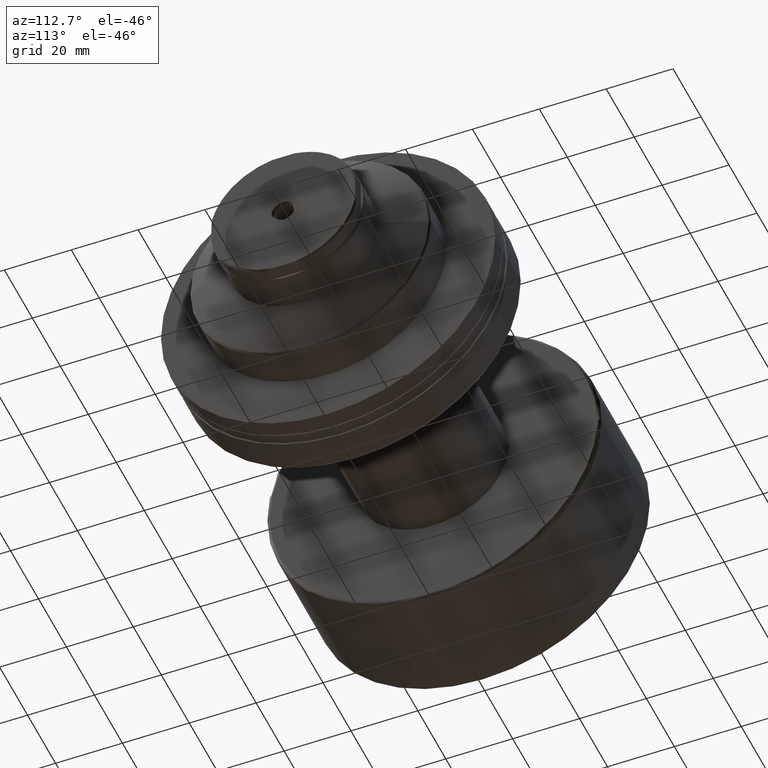
[diagram: clean part render]
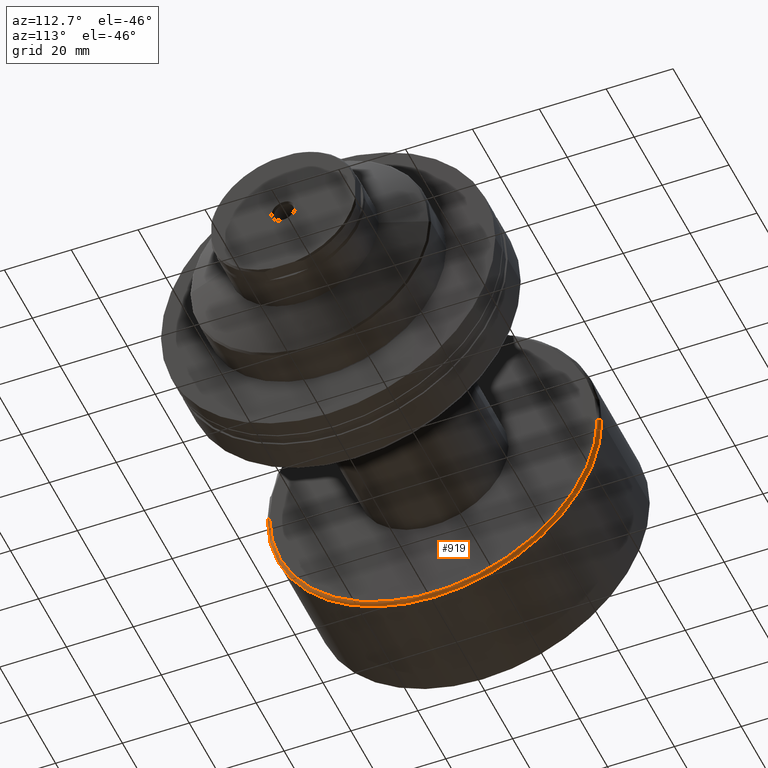
[diagram: same view with one face highlighted and labeled with its STEP entity id]
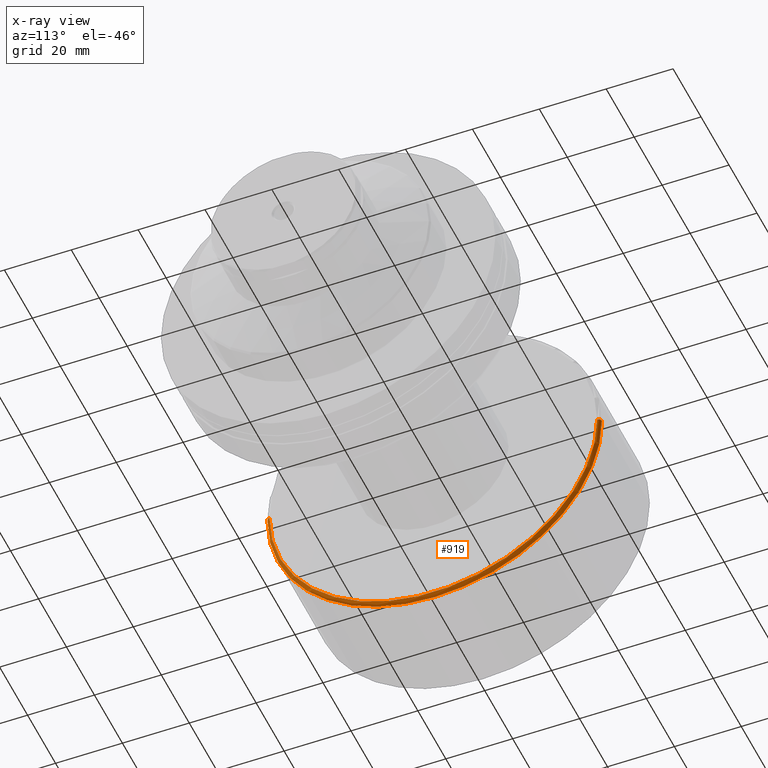
[diagram: x-ray of the same camera — body ghosted, the highlighted face saturated]
A machine part, auxiliary view. The second image highlights one B-rep face of the part: STEP entity #919.
The next image is the same camera in x-ray: the body ghosted, the highlighted face saturated — about 0% of this face is hidden behind the body in this view.
In plain terms, the highlighted toroidal blend (fillet) surface has major radius 49 mm and minor (blend) radius 1 mm.
Its self-contained STEP definition (entity closure, byte-faithful):
#28 = EDGE_LOOP ( 'NONE', ( #754, #538, #1462, #582 ) ) ;
#186 = EDGE_CURVE ( 'NONE', #276, #1580, #384, .T. ) ;
#190 = CARTESIAN_POINT ( 'NONE',  ( 35.70000000000000284, -49.00000000000000000, 0.000000000000000000 ) ) ;
#230 = DIRECTION ( 'NONE',  ( 1.069542322069065955E-17, -1.000000000000000000, 0.000000000000000000 ) ) ;
#249 = CIRCLE ( 'NONE', #1436, 49.00000000000000000 ) ;
#276 = VERTEX_POINT ( 'NONE', #749 ) ;
#381 = FACE_OUTER_BOUND ( 'NONE', #28, .T. ) ;
#384 = CIRCLE ( 'NONE', #1694, 1.000000000000000888 ) ;
#386 = AXIS2_PLACEMENT_3D ( 'NONE', #1819, #1084, #230 ) ;
#420 = AXIS2_PLACEMENT_3D ( 'NONE', #1584, #2090, #2119 ) ;
#538 = ORIENTED_EDGE ( 'NONE', *, *, #2303, .T. ) ;
#550 = DIRECTION ( 'NONE',  ( -1.000000000000000000, 0.000000000000000000, 0.000000000000000000 ) ) ;
#582 = ORIENTED_EDGE ( 'NONE', *, *, #2210, .F. ) ;
#619 = CIRCLE ( 'NONE', #1394, 50.00000000000000000 ) ;
#698 = DIRECTION ( 'NONE',  ( 0.000000000000000000, -1.000000000000000000, 0.000000000000000000 ) ) ;
#731 = DIRECTION ( 'NONE',  ( -1.000000000000000000, -1.069542322069065801E-17, -0.000000000000000000 ) ) ;
#749 = CARTESIAN_POINT ( 'NONE',  ( 36.70000000000000284, -49.00000000000000000, 0.000000000000000000 ) ) ;
#754 = ORIENTED_EDGE ( 'NONE', *, *, #824, .F. ) ;
#824 = EDGE_CURVE ( 'NONE', #1864, #2057, #2218, .T. ) ;
#835 = CARTESIAN_POINT ( 'NONE',  ( 35.70000000000000284, -50.00000000000000000, 0.000000000000000000 ) ) ;
#896 = DIRECTION ( 'NONE',  ( 0.000000000000000000, 0.000000000000000000, -1.000000000000000000 ) ) ;
#919 = ADVANCED_FACE ( 'NONE', ( #381 ), #1392, .T. ) ;
#944 = CARTESIAN_POINT ( 'NONE',  ( 36.70000000000000284, 3.925220321993471577E-16, 0.000000000000000000 ) ) ;
#999 = CARTESIAN_POINT ( 'NONE',  ( 35.70000000000000284, 50.00000000000000000, 6.123233995736766085E-15 ) ) ;
#1084 = DIRECTION ( 'NONE',  ( -1.000000000000000000, -1.069542322069065801E-17, -0.000000000000000000 ) ) ;
#1258 = CARTESIAN_POINT ( 'NONE',  ( 35.70000000000000284, 3.818266089786565135E-16, 0.000000000000000000 ) ) ;
#1392 = TOROIDAL_SURFACE ( 'NONE', #386, 49.00000000000000000, 1.000000000000000888 ) ;
#1394 = AXIS2_PLACEMENT_3D ( 'NONE', #1258, #731, #698 ) ;
#1436 = AXIS2_PLACEMENT_3D ( 'NONE', #944, #1656, #1670 ) ;
#1462 = ORIENTED_EDGE ( 'NONE', *, *, #186, .T. ) ;
#1580 = VERTEX_POINT ( 'NONE', #835 ) ;
#1584 = CARTESIAN_POINT ( 'NONE',  ( 35.70000000000000284, 49.00000000000000000, 6.000769315822030937E-15 ) ) ;
#1656 = DIRECTION ( 'NONE',  ( -1.000000000000000000, -1.069542322069065801E-17, -0.000000000000000000 ) ) ;
#1670 = DIRECTION ( 'NONE',  ( 0.000000000000000000, -1.000000000000000000, 0.000000000000000000 ) ) ;
#1694 = AXIS2_PLACEMENT_3D ( 'NONE', #190, #896, #550 ) ;
#1819 = CARTESIAN_POINT ( 'NONE',  ( 35.70000000000000284, 0.000000000000000000, 0.000000000000000000 ) ) ;
#1864 = VERTEX_POINT ( 'NONE', #1950 ) ;
#1950 = CARTESIAN_POINT ( 'NONE',  ( 36.70000000000000284, 49.00000000000000000, 6.062001655779398511E-15 ) ) ;
#2057 = VERTEX_POINT ( 'NONE', #999 ) ;
#2090 = DIRECTION ( 'NONE',  ( 1.309811581274509052E-33, -1.224646799147353207E-16, 1.000000000000000000 ) ) ;
#2119 = DIRECTION ( 'NONE',  ( 0.000000000000000000, -1.000000000000000000, -1.224646799147349509E-16 ) ) ;
#2210 = EDGE_CURVE ( 'NONE', #2057, #1580, #619, .T. ) ;
#2218 = CIRCLE ( 'NONE', #420, 1.000000000000000888 ) ;
#2303 = EDGE_CURVE ( 'NONE', #1864, #276, #249, .T. ) ;